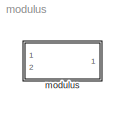
MODEL modulus
KIND model
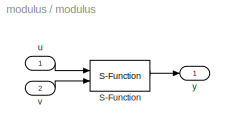
BLOCK [SubSystem] modulus
  MinAlgLoopOccurrences = off
  Ports = [2, 1]
  RTWSystemCode = Auto
  TreatAsAtomicUnit = off
BLOCK [S-Function] modulus/S-Function
  FunctionName = s_modulus
  Ports = [2, 1]
BLOCK [Inport] modulus/u
  IconDisplay = Port number
  LatchInput = off
  Port = 1
  PortDimensions = 1
BLOCK [Inport] modulus/v
  IconDisplay = Port number
  LatchInput = off
  Port = 2
  PortDimensions = 1
BLOCK [Outport] modulus/y
  BusOutputAsStruct = off
  IconDisplay = Port number
  PortDimensions = 1
LINE modulus/S-Function:1 -> modulus/y:1
LINE modulus/u:1 -> modulus/S-Function:1
LINE modulus/v:1 -> modulus/S-Function:2
